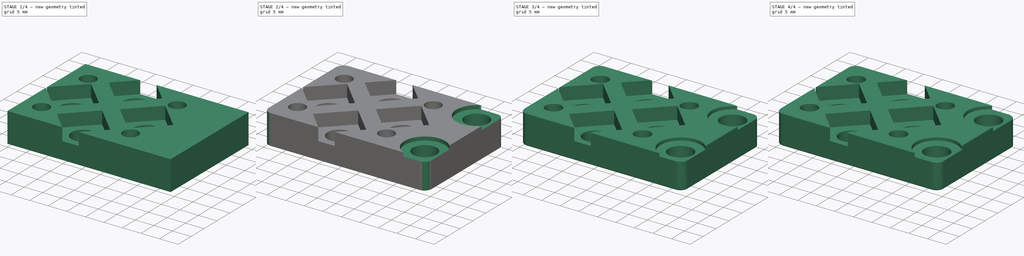
[diagram: build sequence overview — one tinted view per stage of 4, left to right]
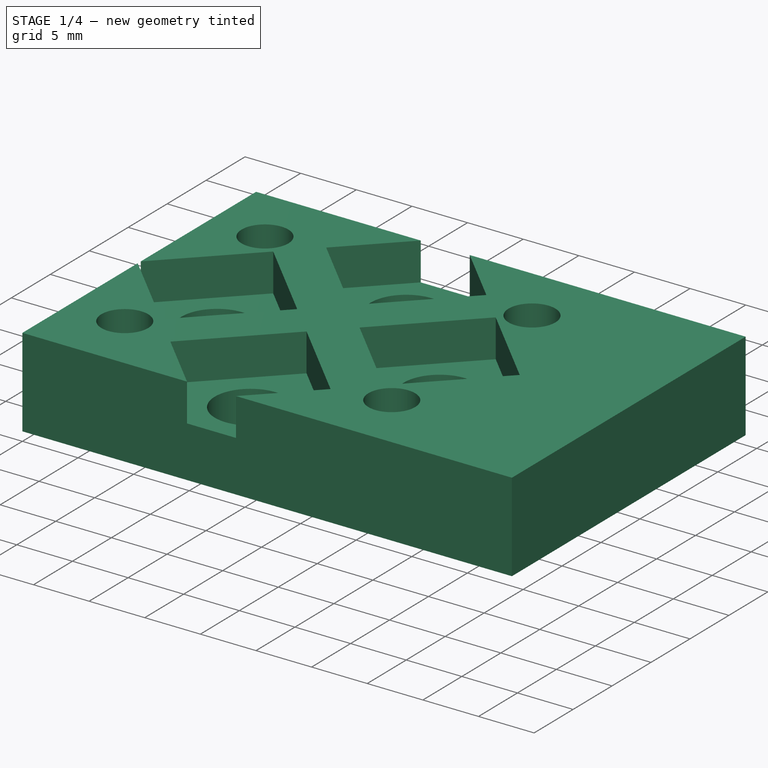
[diagram: stage 1 of 4 — iso view after this stage's code; geometry added in this stage tinted green]
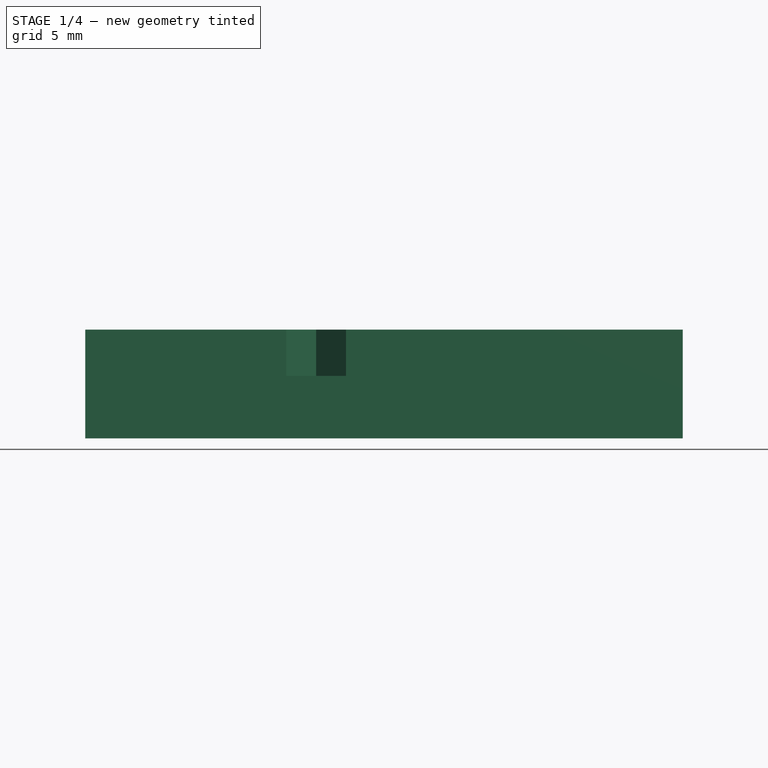
[diagram: stage 1 of 4 — front view after this stage's code; geometry added in this stage tinted green]
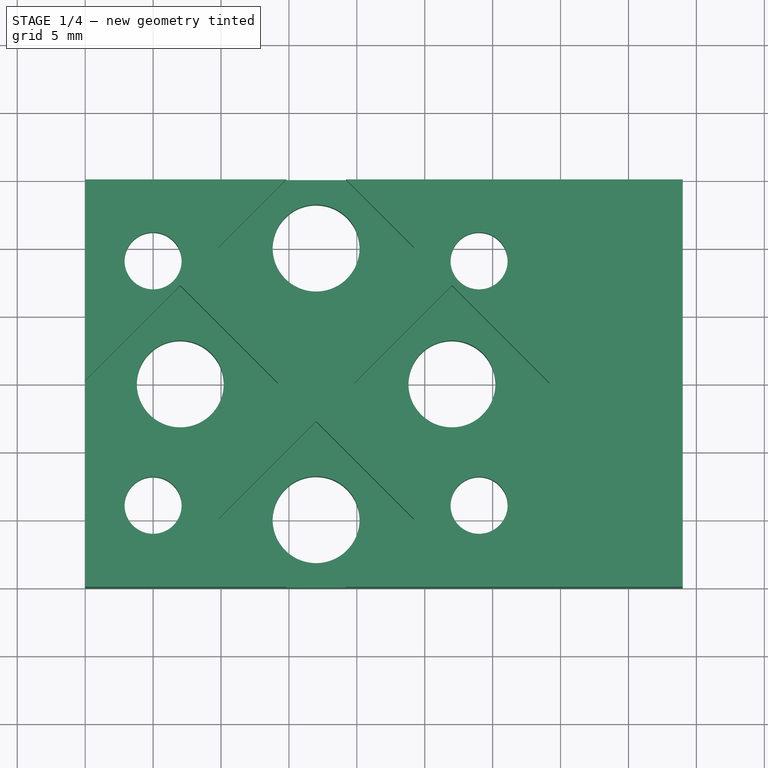
[diagram: stage 1 of 4 — top view after this stage's code; geometry added in this stage tinted green]
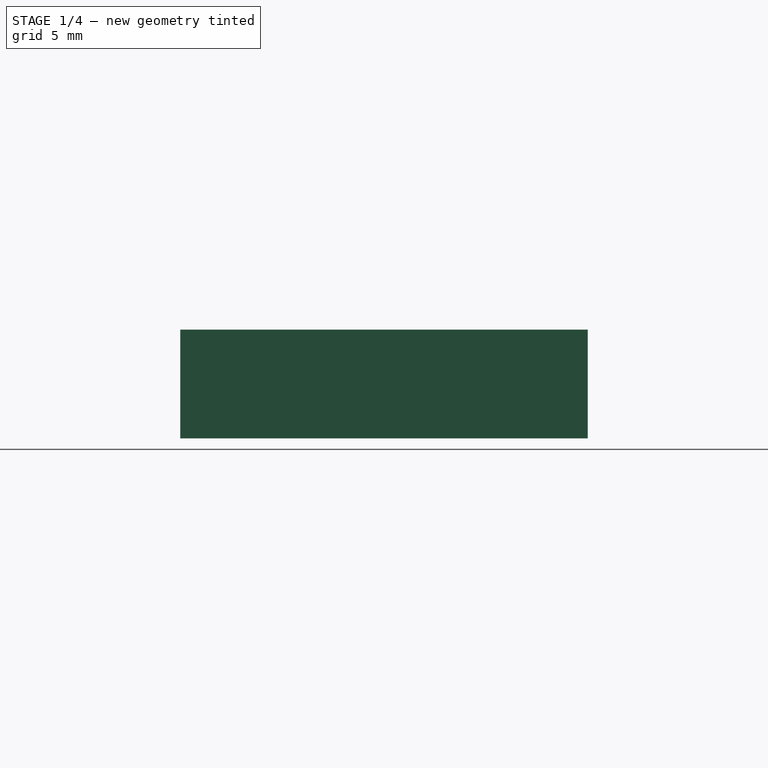
[diagram: stage 1 of 4 — right view after this stage's code; geometry added in this stage tinted green]
FCSTD DOCUMENT  (FreeCAD 0.19R23964 (Git))
Label: sc8uu-adapter2g_cham
License: All rights reserved
LicenseURL: http://en.wikipedia.org/wiki/All_rights_reserved
objects: PartDesign::Chamfer×6, Sketcher::SketchObject×5, PartDesign::Pocket×4, PartDesign::Pad×1, PartDesign::Fillet×1, PartDesign::Body×1
note: 30 computed .brp shape members not serialized (recipe doc carries the construction recipe); baked Part::Feature solids carry a one-line shape summary decoded from their .brp

FEATURE [Sketcher::SketchObject] Sketch
  FullyConstrained = false
  MapMode = 5
  Support = -> [XY_Plane]
  sketch-geometry (12):
    g0: LineSegment StartX=0 StartY=30 StartZ=0 EndX=44 EndY=30 EndZ=0
    g1: LineSegment StartX=44 StartY=30 StartZ=0 EndX=44 EndY=0 EndZ=0
    g2: LineSegment StartX=44 StartY=0 StartZ=0 EndX=0 EndY=0 EndZ=0
    g3: LineSegment StartX=0 StartY=0 StartZ=0 EndX=0 EndY=30 EndZ=0
    g4: Circle CenterX=5 CenterY=24 CenterZ=0 NormalX=0 NormalY=0 NormalZ=1 AngleXU=0 Radius=2.1
    g5: Circle CenterX=29 CenterY=24 CenterZ=0 NormalX=0 NormalY=0 NormalZ=1 AngleXU=0 Radius=2.1
    g6: Circle CenterX=29 CenterY=6 CenterZ=0 NormalX=0 NormalY=0 NormalZ=1 AngleXU=0 Radius=2.1
    g7: Circle CenterX=5 CenterY=6 CenterZ=0 NormalX=0 NormalY=0 NormalZ=1 AngleXU=0 Radius=2.1
    g8: Circle CenterX=17 CenterY=5 CenterZ=0 NormalX=0 NormalY=0 NormalZ=1 AngleXU=0 Radius=3.2
    g9: Circle CenterX=17 CenterY=25 CenterZ=0 NormalX=0 NormalY=0 NormalZ=1 AngleXU=0 Radius=3.2
    g10: Circle CenterX=27 CenterY=15 CenterZ=0 NormalX=0 NormalY=0 NormalZ=1 AngleXU=0 Radius=3.2
    g11: Circle CenterX=7 CenterY=15 CenterZ=0 NormalX=0 NormalY=0 NormalZ=1 AngleXU=0 Radius=3.2
  constraints (35):
    c: Coincident(g0,g1)
    c: Coincident(g1,g2)
    c: Coincident(g2,g3)
    c: Coincident(g3,g0)
    c: Horizontal(g0)
    c: Horizontal(g2)
    c: Vertical(g1)
    c: Vertical(g3)
    c: Coincident(g2,g-1)
    c: DistanceX(g0,g0) = 44
    c: DistanceY(g3,g3) = 30
    c: DistanceY(g2,g7) = 6
    c: DistanceX(g2,g7) = 5
    c: DistanceX(g7,g4) = 0
    c: DistanceX(g5,g6) = 0
    c: DistanceY(g4,g5) = 0
    c: DistanceY(g7,g6) = 0
    c: DistanceY(g7,g4) = 18
    c: DistanceX(g4,g5) = 24
    c: Radius(g4) = 2.1
    c: Equal(g4,g5)
    c: Equal(g4,g6)
    c: Equal(g4,g7)
    c: DistanceX(g2,g8) = 17
    c: DistanceY(g2,g8) = 5
    c: DistanceX(g9,g8) = 0
    c: DistanceY(g10,g11) = 0
    c: DistanceX(g2,g11) = 7
    c: DistanceY(g2,g11) = 15
    c: DistanceY(g8,g9) = 20
    c: DistanceX(g11,g10) = 20
    c: Radius(g9) = 3.2
    c: Equal(g9,g10)
    c: Equal(g9,g8)
    c: Equal(g9,g11)
FEATURE [PartDesign::Pad] Pad
  AllowMultiFace = false
  Direction = (1,1,1)
  Length = 8
  Length2 = 100
  Profile = -> Sketch
  Type = 0
FEATURE [Sketcher::SketchObject] Sketch001
  FullyConstrained = false
  MapMode = 5
  Placement = pos=(0,0,8) rot=(0,0,1;0rad)
  Support = -> [Pad]
  sketch-geometry (24):
    g0: Circle CenterX=17 CenterY=25 CenterZ=0 NormalX=0 NormalY=0 NormalZ=1 AngleXU=0 Radius=7.2
    g1: Circle CenterX=27 CenterY=15 CenterZ=0 NormalX=0 NormalY=0 NormalZ=1 AngleXU=0 Radius=7.2
    g2: Circle CenterX=17 CenterY=5 CenterZ=0 NormalX=0 NormalY=0 NormalZ=1 AngleXU=0 Radius=7.2
    g3: Circle CenterX=7 CenterY=15 CenterZ=0 NormalX=0 NormalY=0 NormalZ=1 AngleXU=0 Radius=7.2
    g4: LineSegment StartX=17 StartY=32.2 StartZ=0 EndX=9.8 EndY=25 EndZ=0
    g5: LineSegment StartX=9.8 StartY=25 StartZ=0 EndX=17 EndY=17.8 EndZ=0
    g6: LineSegment StartX=17 StartY=17.8 StartZ=0 EndX=24.2 EndY=25 EndZ=0
    g7: LineSegment StartX=24.2 StartY=25 StartZ=0 EndX=17 EndY=32.2 EndZ=0
    g8: LineSegment StartX=17 StartY=31 StartZ=0 EndX=17 EndY=25 EndZ=0
    g9: LineSegment StartX=27 StartY=21 StartZ=0 EndX=27 EndY=15 EndZ=0
    g10: LineSegment StartX=7 StartY=21 StartZ=0 EndX=7 EndY=15 EndZ=0
    g11: LineSegment StartX=17 StartY=11 StartZ=0 EndX=17 EndY=5 EndZ=0
    g12: LineSegment StartX=7 StartY=22.2 StartZ=0 EndX=-0.2 EndY=15 EndZ=0
    g13: LineSegment StartX=-0.2 StartY=15 StartZ=0 EndX=7 EndY=7.8 EndZ=0
    g14: LineSegment StartX=7 StartY=7.8 StartZ=0 EndX=14.2 EndY=15 EndZ=0
    g15: LineSegment StartX=14.2 StartY=15 StartZ=0 EndX=7 EndY=22.2 EndZ=0
    g16: LineSegment StartX=27 StartY=22.2 StartZ=0 EndX=19.8 EndY=15 EndZ=0
    g17: LineSegment StartX=19.8 StartY=15 StartZ=0 EndX=27 EndY=7.8 EndZ=0
    g18: LineSegment StartX=27 StartY=7.8 StartZ=0 EndX=34.2 EndY=15 EndZ=0
    g19: LineSegment StartX=34.2 StartY=15 StartZ=0 EndX=27 EndY=22.2 EndZ=0
    g20: LineSegment StartX=17 StartY=12.2 StartZ=0 EndX=9.8 EndY=5 EndZ=0
    g21: LineSegment StartX=9.8 StartY=5 StartZ=0 EndX=17 EndY=-2.2 EndZ=0
    g22: LineSegment StartX=17 StartY=-2.2 StartZ=0 EndX=24.2 EndY=5 EndZ=0
    g23: LineSegment StartX=24.2 StartY=5 StartZ=0 EndX=17 EndY=12.2 EndZ=0
  constraints (72):
    c: DistanceX(g-1,g0) = 17
    c: DistanceY(g-1,g0) = 25
    c: DistanceY(g-1,g3) = 15
    c: DistanceX(g-1,g3) = 7
    c: DistanceX(g2,g0) = 0
    c: DistanceY(g1,g3) = 0
    c: DistanceY(g2,g0) = 20
    c: DistanceX(g3,g1) = 20
    c: Radius(g3) = 7.2
    c: Equal(g3,g0)
    c: Equal(g3,g1)
    c: Equal(g3,g2)
    c: Coincident(g4,g5)
    c: Coincident(g5,g6)
    c: Coincident(g6,g7)
    c: Coincident(g7,g4)
    c: Angle(g4,g7) = 1.5708
    c: PointOnObject(g4,g0)
    c: Equal(g4,g6)
    c: Equal(g7,g5)
    c: PointOnObject(g4,g0)
    c: PointOnObject(g6,g0)
    c: Equal(g6,g7)
    c: Vertical(g8)
    c: Angle(g4,g8) = 0.785398
    c: DistanceY(g8,g8) = 6
    c: Vertical(g9)
    c: Vertical(g10)
    c: Vertical(g11)
    c: DistanceY(g9,g9) = 6
    c: DistanceY(g11,g11) = 6
    c: DistanceY(g10,g10) = 6
    c: Coincident(g9,g1)
    c: Coincident(g3,g10)
    c: Coincident(g11,g2)
    c: Coincident(g8,g0)
    c: Coincident(g12,g13)
    c: Coincident(g13,g14)
    c: Coincident(g14,g15)
    c: Coincident(g15,g12)
    c: Equal(g12,g15)
    c: Equal(g15,g14)
    c: Equal(g14,g13)
    c: PointOnObject(g12,g3)
    c: PointOnObject(g12,g3)
    c: PointOnObject(g14,g3)
    c: PointOnObject(g13,g3)
    c: Angle(g12,g10) = 0.785398
    c: Coincident(g16,g17)
    c: Coincident(g17,g18)
    c: Coincident(g18,g19)
    c: Coincident(g19,g16)
    c: PointOnObject(g16,g1)
    c: PointOnObject(g18,g1)
    c: PointOnObject(g17,g1)
    c: PointOnObject(g16,g1)
    c: Equal(g16,g19)
    c: Equal(g19,g18)
    c: Equal(g18,g17)
    c: Angle(g16,g9) = 0.785398
    c: Coincident(g20,g21)
    c: Coincident(g21,g22)
    c: Coincident(g22,g23)
    c: Coincident(g23,g20)
    c: PointOnObject(g20,g2)
    c: PointOnObject(g20,g2)
    c: PointOnObject(g21,g2)
    c: PointOnObject(g22,g2)
    c: Equal(g20,g23)
    c: Equal(g23,g22)
    c: Equal(g22,g21)
    c: Angle(g20,g11) = 0.785398
FEATURE [PartDesign::Pocket] Pocket
  AllowMultiFace = false
  BaseFeature = -> Pad
  Length = 3.4
  Length2 = 100
  Profile = -> Sketch001
  Type = 0
FEATURE [Sketcher::SketchObject] Sketch002
  FullyConstrained = false
  MapMode = 5
  Placement = pos=(0,0,0) rot=(1,0,0;3.14159rad)
  Support = -> [Pocket]
  sketch-geometry (4):
    g0: Circle CenterX=5 CenterY=-6 CenterZ=0 NormalX=0 NormalY=0 NormalZ=1 AngleXU=0 Radius=4
    g1: Circle CenterX=29 CenterY=-6 CenterZ=0 NormalX=0 NormalY=0 NormalZ=1 AngleXU=0 Radius=4
    g2: Circle CenterX=5 CenterY=-24 CenterZ=0 NormalX=0 NormalY=0 NormalZ=1 AngleXU=0 Radius=4
    g3: Circle CenterX=29 CenterY=-24 CenterZ=0 NormalX=0 NormalY=0 NormalZ=1 AngleXU=0 Radius=4
  constraints (12):
    c: DistanceY(g0,g-1) = 6
    c: DistanceX(g-1,g0) = 5
    c: DistanceX(g0,g1) = 24
    c: DistanceX(g2,g3) = 24
    c: DistanceY(g3,g1) = 18
    c: DistanceY(g2,g0) = 18
    c: DistanceX(g0,g2) = 0
    c: DistanceY(g1,g0) = 0
    c: Radius(g0) = 4
    c: Equal(g0,g1)
    c: Equal(g0,g3)
    c: Equal(g0,g2)
FEATURE [PartDesign::Pocket] Pocket001
  AllowMultiFace = false
  BaseFeature = -> Pocket
  Length = 4.2
  Length2 = 100
  Profile = -> Sketch002
  Type = 0
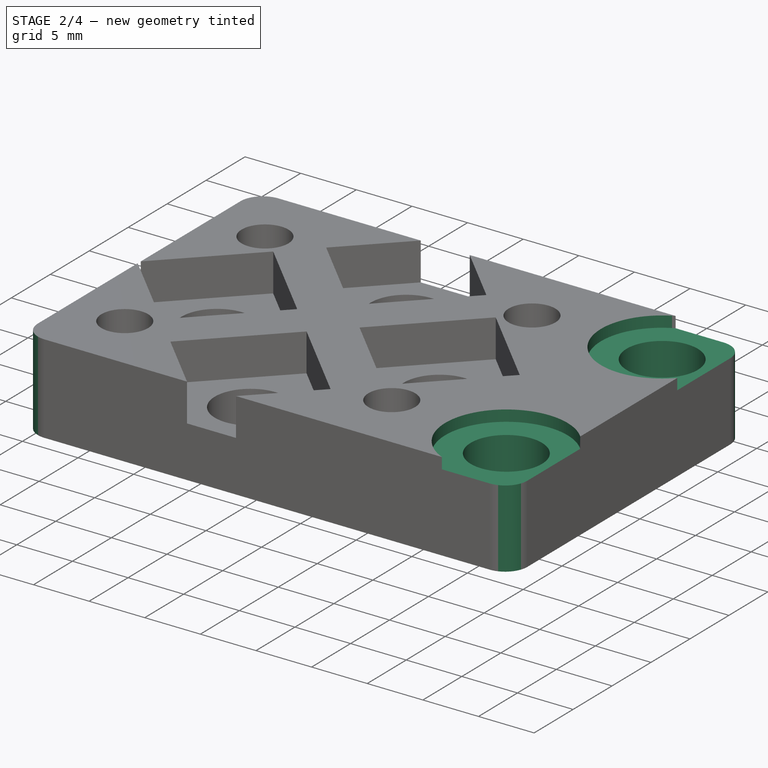
[diagram: stage 2 of 4 — iso view after this stage's code; geometry added in this stage tinted green]
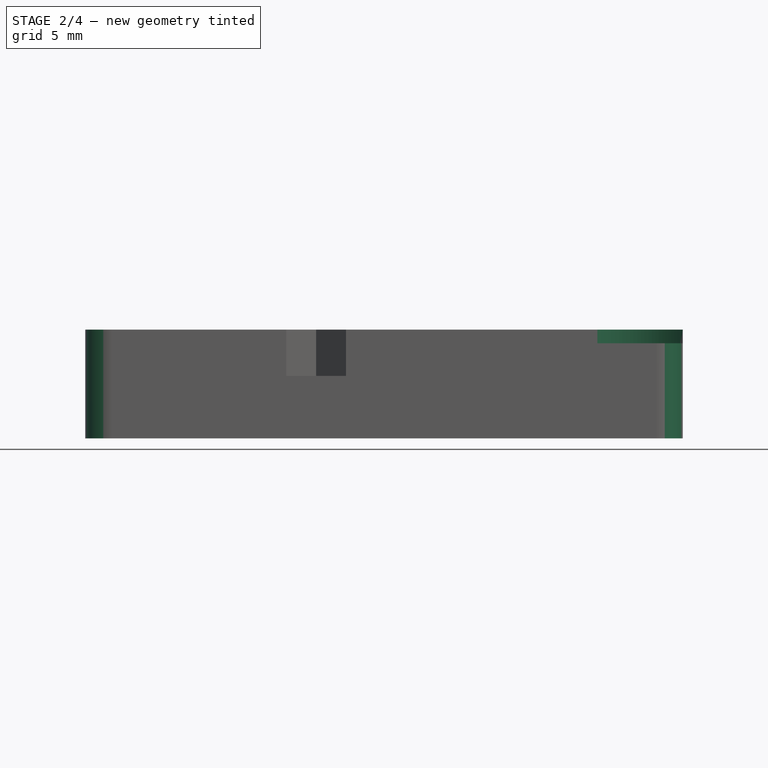
[diagram: stage 2 of 4 — front view after this stage's code; geometry added in this stage tinted green]
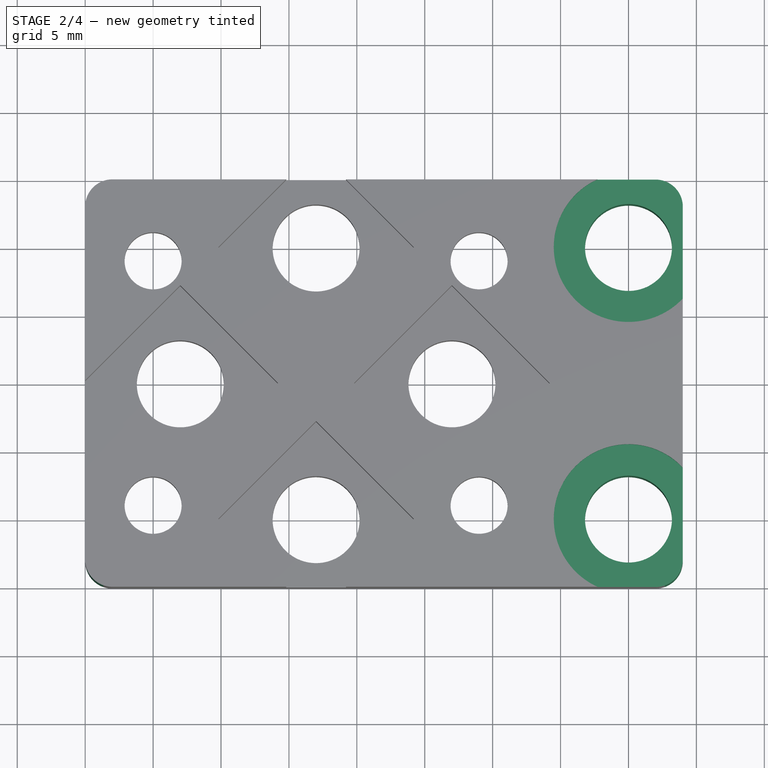
[diagram: stage 2 of 4 — top view after this stage's code; geometry added in this stage tinted green]
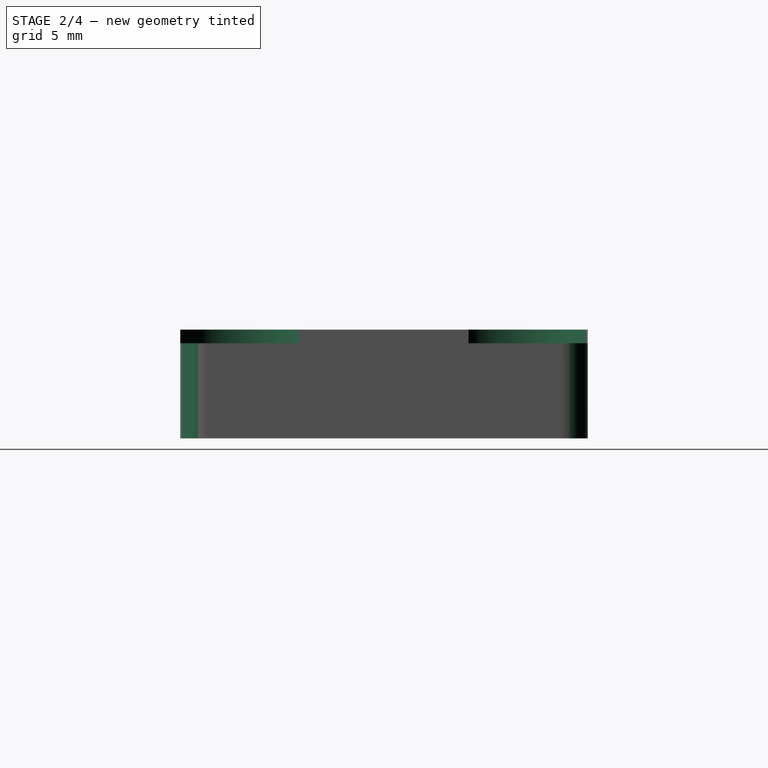
[diagram: stage 2 of 4 — right view after this stage's code; geometry added in this stage tinted green]
FEATURE [Sketcher::SketchObject] Sketch003
  FullyConstrained = false
  MapMode = 5
  Placement = pos=(0,0,0) rot=(1,0,0;3.14159rad)
  Support = -> [Pocket001]
  sketch-geometry (2):
    g0: Circle CenterX=40 CenterY=-25 CenterZ=0 NormalX=0 NormalY=0 NormalZ=1 AngleXU=0 Radius=3.2
    g1: Circle CenterX=40 CenterY=-5 CenterZ=0 NormalX=0 NormalY=0 NormalZ=1 AngleXU=0 Radius=3.2
  constraints (6):
    c: DistanceX(g-1,g1) = 40
    c: DistanceY(g1,g-1) = 5
    c: DistanceX(g1,g0) = 0
    c: DistanceY(g0,g1) = 20
    c: Radius(g0) = 3.2
    c: Radius(g1) = 3.2
FEATURE [PartDesign::Pocket] Pocket002
  AllowMultiFace = false
  BaseFeature = -> Pocket001
  Length = 8
  Length2 = 100
  Profile = -> Sketch003
  Type = 0
FEATURE [Sketcher::SketchObject] Sketch004
  FullyConstrained = false
  MapMode = 5
  Placement = pos=(0,0,8) rot=(0,0,1;0rad)
  Support = -> [Pocket002]
  sketch-geometry (2):
    g0: Circle CenterX=40 CenterY=25 CenterZ=0 NormalX=0 NormalY=0 NormalZ=1 AngleXU=0 Radius=5.5
    g1: Circle CenterX=40 CenterY=5 CenterZ=0 NormalX=0 NormalY=0 NormalZ=1 AngleXU=0 Radius=5.5
  constraints (6):
    c: DistanceX(g-1,g1) = 40
    c: DistanceY(g-1,g1) = 5
    c: DistanceX(g0,g1) = 0
    c: DistanceY(g1,g0) = 20
    c: Radius(g0) = 5.5
    c: Radius(g1) = 5.5
FEATURE [PartDesign::Pocket] Pocket003
  AllowMultiFace = false
  BaseFeature = -> Pocket002
  Length = 1
  Length2 = 100
  Profile = -> Sketch004
  Type = 0
FEATURE [PartDesign::Fillet] Fillet
  Base = -> Pocket003 [Edge2,Edge12,Edge26,Edge76]
  BaseFeature = -> Pocket003
  Radius = 2
  SupportTransform = false
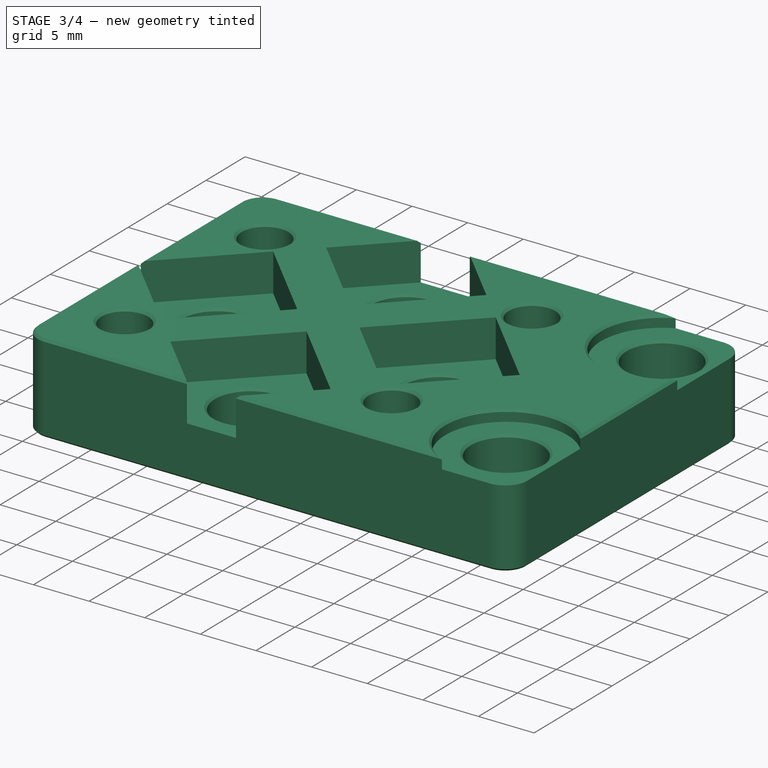
[diagram: stage 3 of 4 — iso view after this stage's code; geometry added in this stage tinted green]
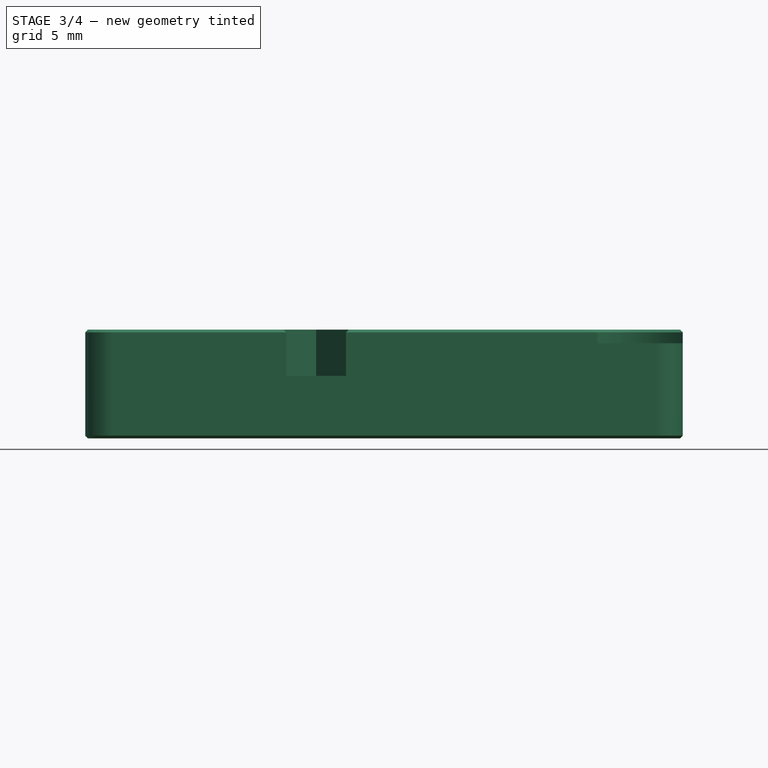
[diagram: stage 3 of 4 — front view after this stage's code; geometry added in this stage tinted green]
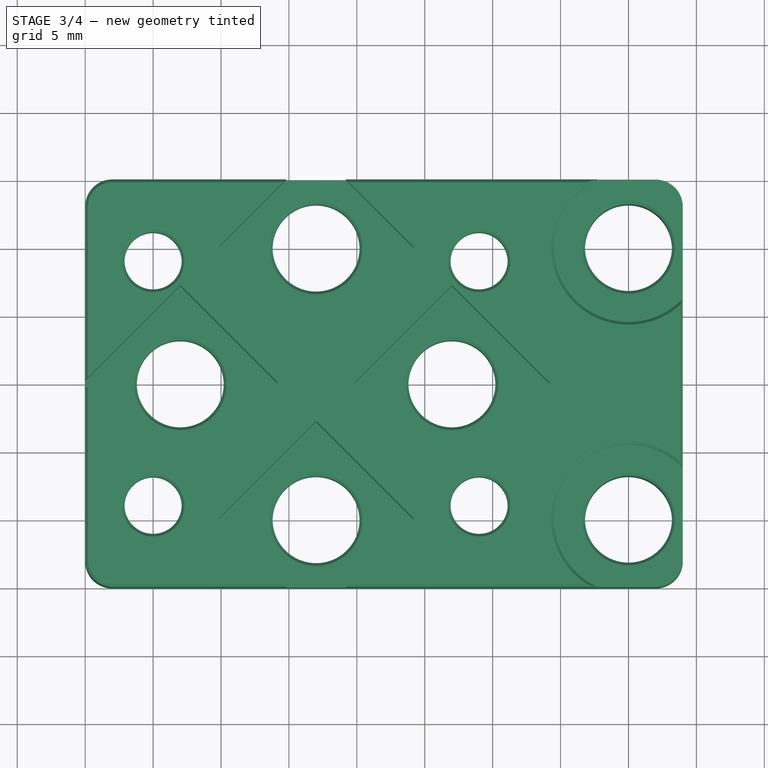
[diagram: stage 3 of 4 — top view after this stage's code; geometry added in this stage tinted green]
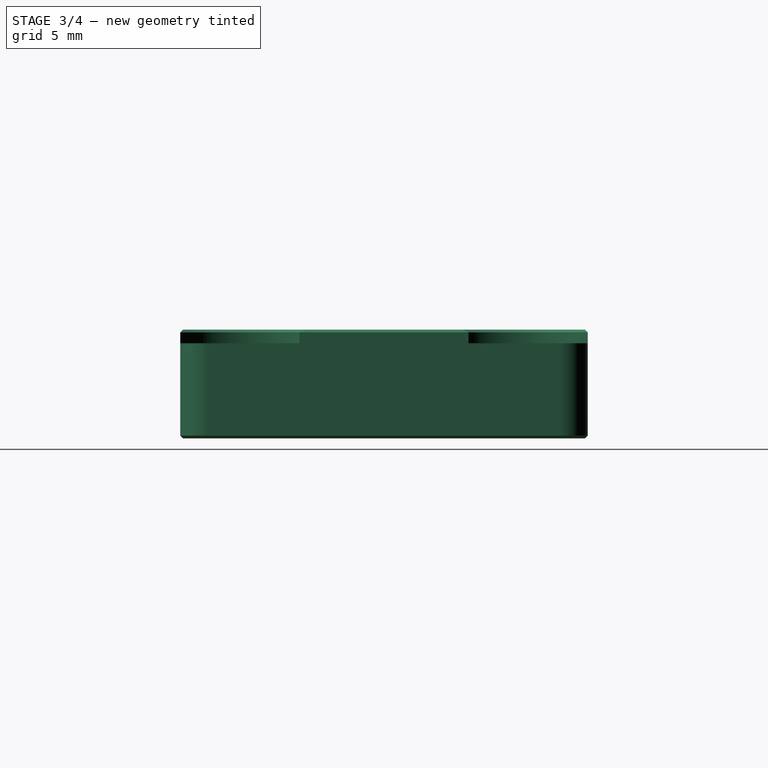
[diagram: stage 3 of 4 — right view after this stage's code; geometry added in this stage tinted green]
FEATURE [PartDesign::Chamfer] Chamfer
  Angle = 45
  Base = -> Fillet [Face2]
  BaseFeature = -> Fillet
  ChamferType = 0
  FlipDirection = false
  Size = 0.2
  Size2 = 1
  SupportTransform = false
FEATURE [PartDesign::Chamfer] Chamfer001
  Angle = 45
  Base = -> Chamfer [Edge32,Edge30,Edge29,Edge20,Edge18,Edge17,Edge27,Edge12,Edge3,Edge10,Edge34]
  BaseFeature = -> Chamfer
  ChamferType = 0
  FlipDirection = false
  Size = 0.2
  Size2 = 1
  SupportTransform = false
FEATURE [PartDesign::Chamfer] Chamfer002
  Angle = 45
  Base = -> Chamfer001 [Edge69,Edge70,Edge76,Edge71,Edge184,Edge117,Edge29,Edge188,Edge180,Edge32]
  BaseFeature = -> Chamfer001
  ChamferType = 0
  FlipDirection = false
  Size = 0.2
  Size2 = 1
  SupportTransform = false
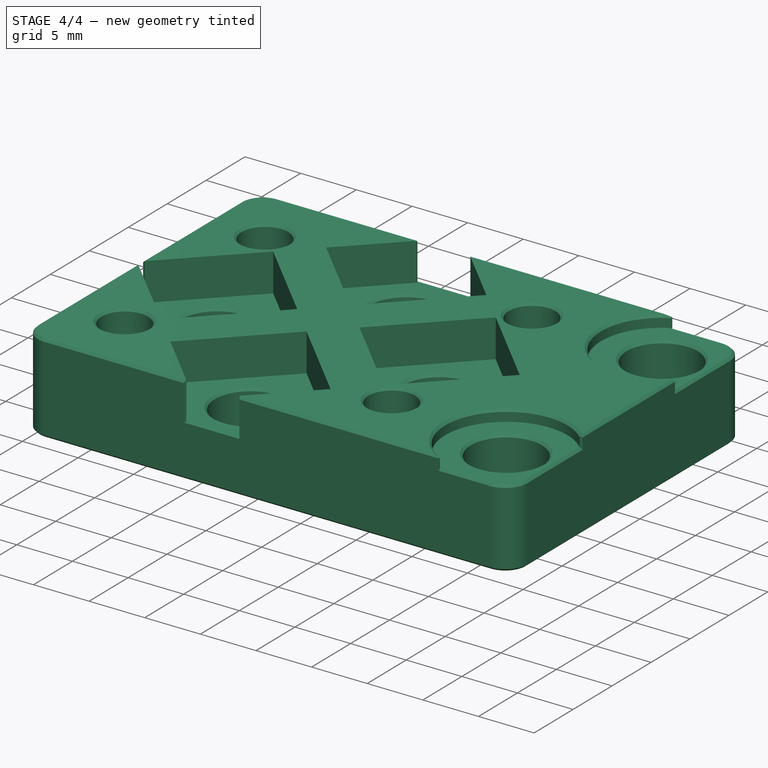
[diagram: stage 4 of 4 — iso view after this stage's code; geometry added in this stage tinted green]
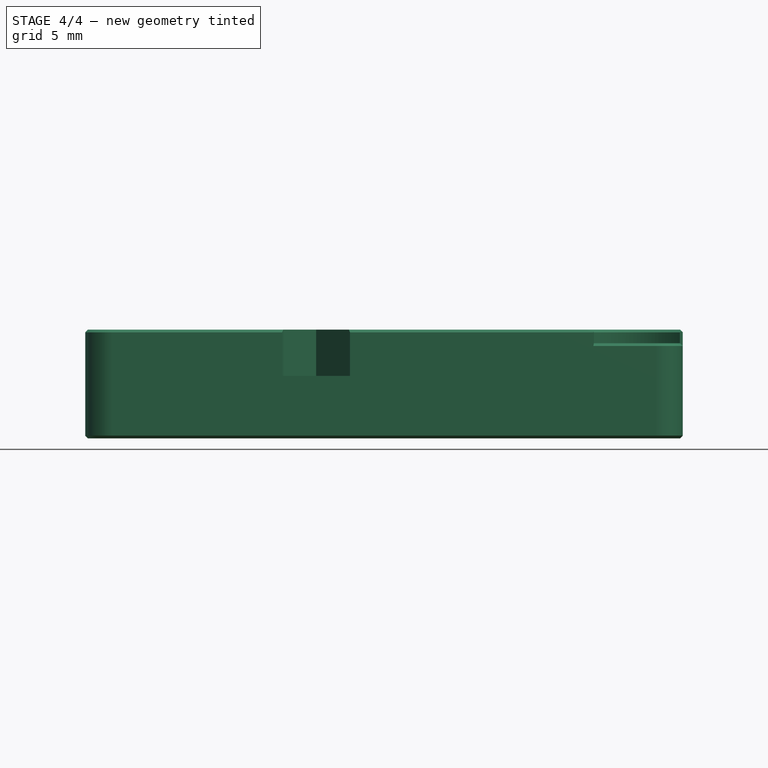
[diagram: stage 4 of 4 — front view after this stage's code; geometry added in this stage tinted green]
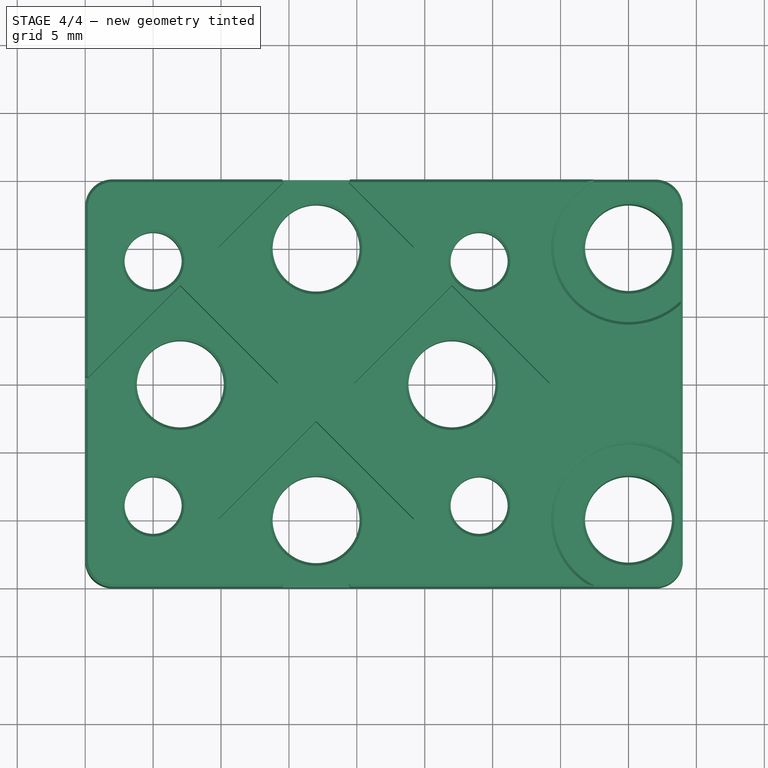
[diagram: stage 4 of 4 — top view after this stage's code; geometry added in this stage tinted green]
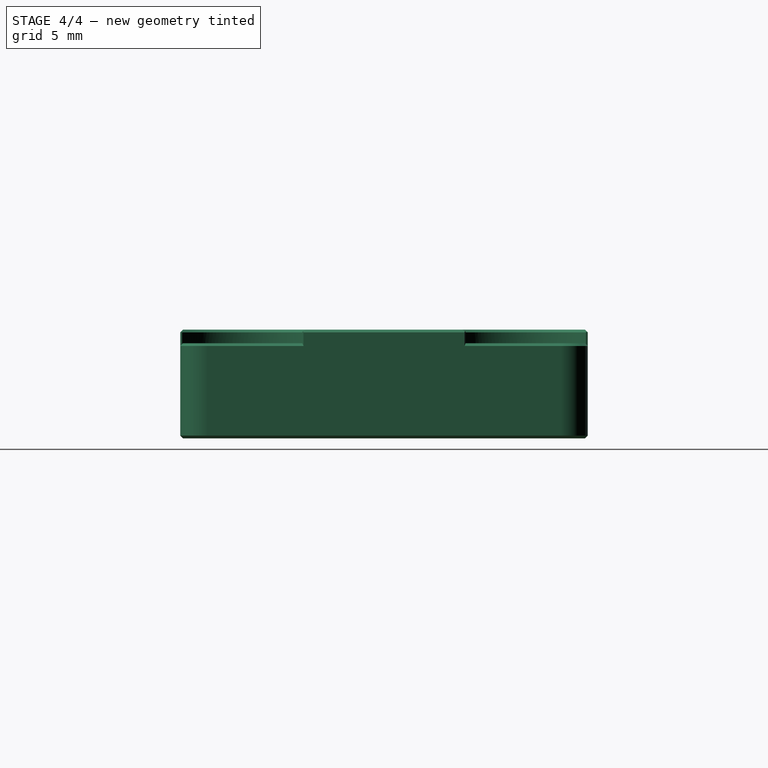
[diagram: stage 4 of 4 — right view after this stage's code; geometry added in this stage tinted green]
FEATURE [PartDesign::Chamfer] Chamfer003
  Angle = 45
  Base = -> Chamfer002 [Edge80,Edge83,Edge15,Edge132,Edge125,Edge12]
  BaseFeature = -> Chamfer002
  ChamferType = 0
  FlipDirection = false
  Size = 0.3
  Size2 = 1
  SupportTransform = false
FEATURE [PartDesign::Chamfer] Chamfer004
  Angle = 45
  Base = -> Chamfer003 [Edge167,Edge183,Edge25,Edge80]
  BaseFeature = -> Chamfer003
  ChamferType = 0
  FlipDirection = false
  Size = 0.3
  Size2 = 1
  SupportTransform = false
FEATURE [PartDesign::Chamfer] Chamfer005
  Angle = 45
  Base = -> Chamfer004 [Edge6,Edge28,Edge27,Edge92,Edge192,Edge191]
  BaseFeature = -> Chamfer004
  ChamferType = 0
  FlipDirection = false
  Size = 0.2
  Size2 = 1
  SupportTransform = false
FEATURE [PartDesign::Body] Body
  Group = -> [Sketch,Pad,Sketch001,Pocket,Sketch002,Pocket001,Sketch003,Pocket002,Sketch004,Pocket003,Fillet,Chamfer,Chamfer001,Chamfer002,Chamfer003,Chamfer004,Chamfer005]
  Origin = -> Origin
  Tip = -> Chamfer005
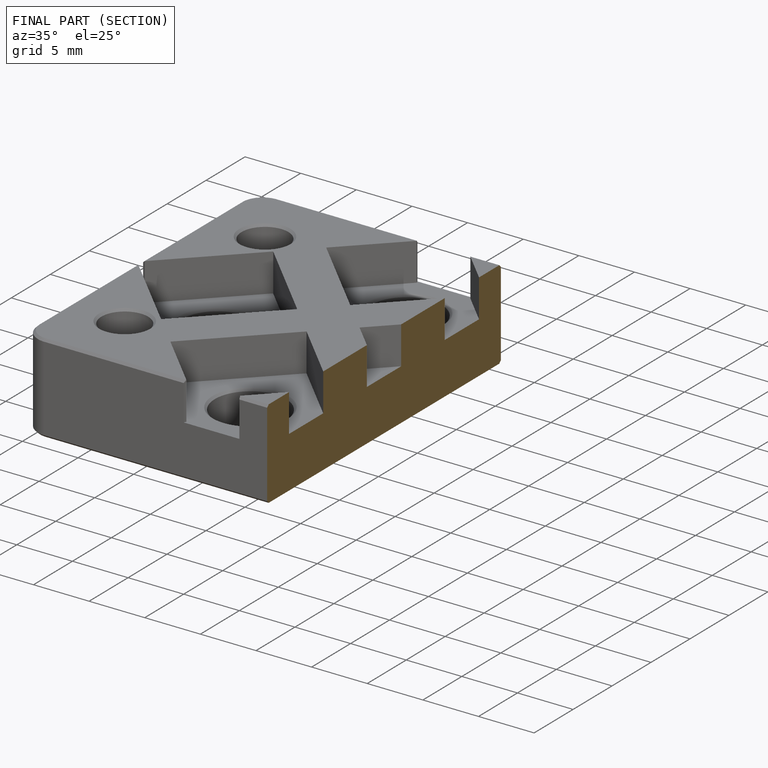
[diagram: finished part — half-section view (interior)]
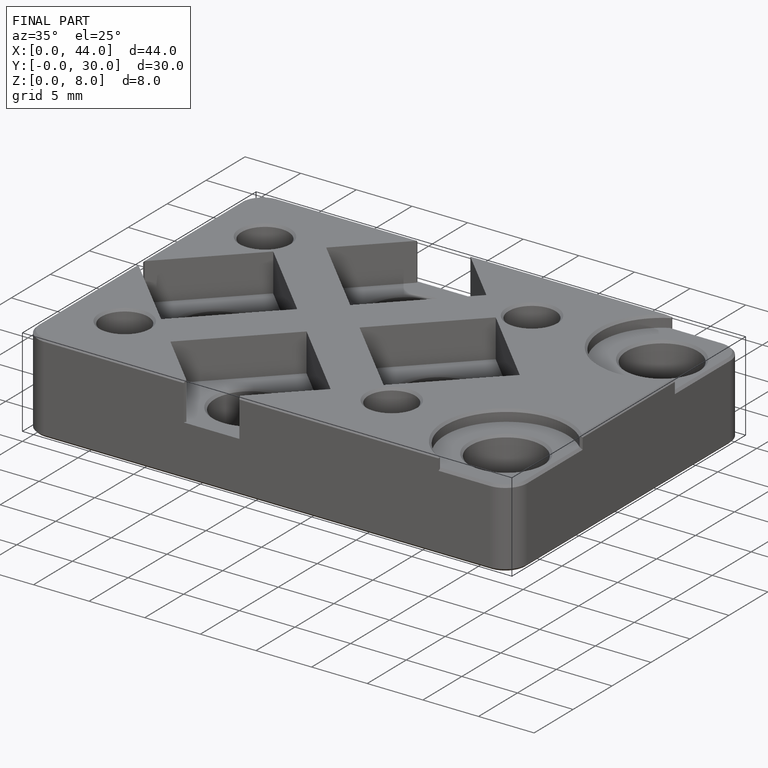
[diagram: finished part — iso view with bounding-box wireframe]
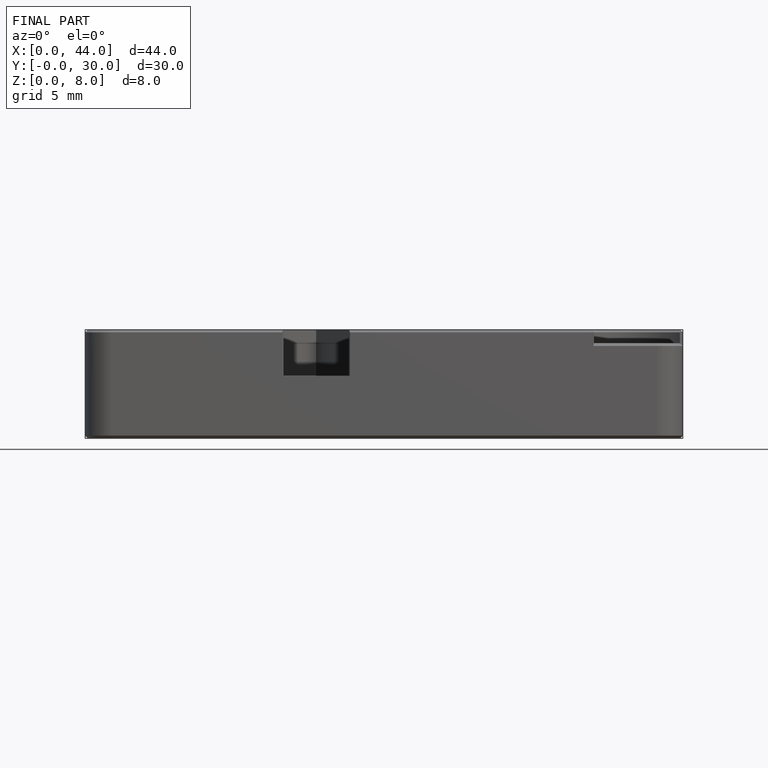
[diagram: finished part — front view with bounding-box wireframe]
